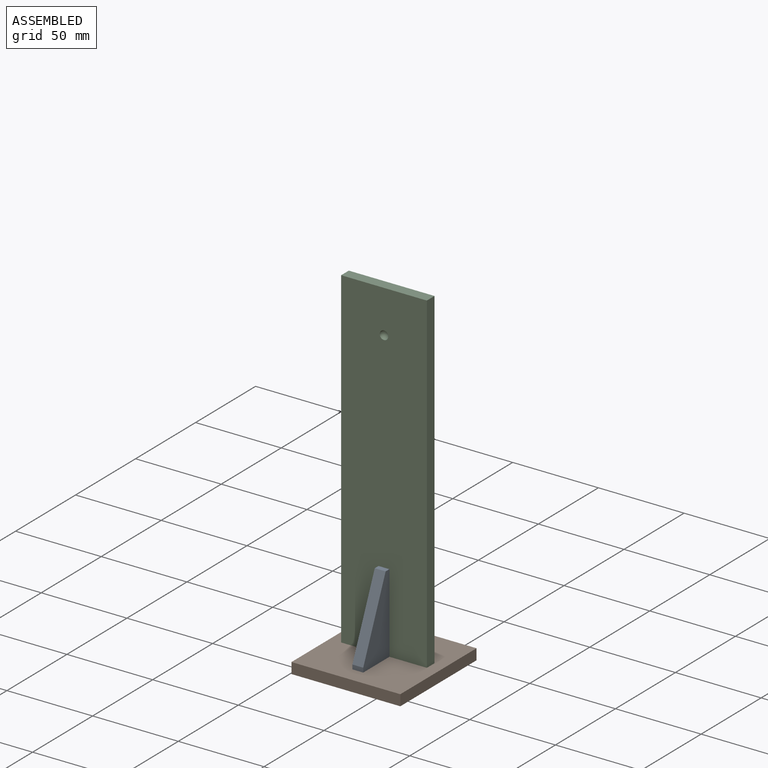
[diagram: assembled view]
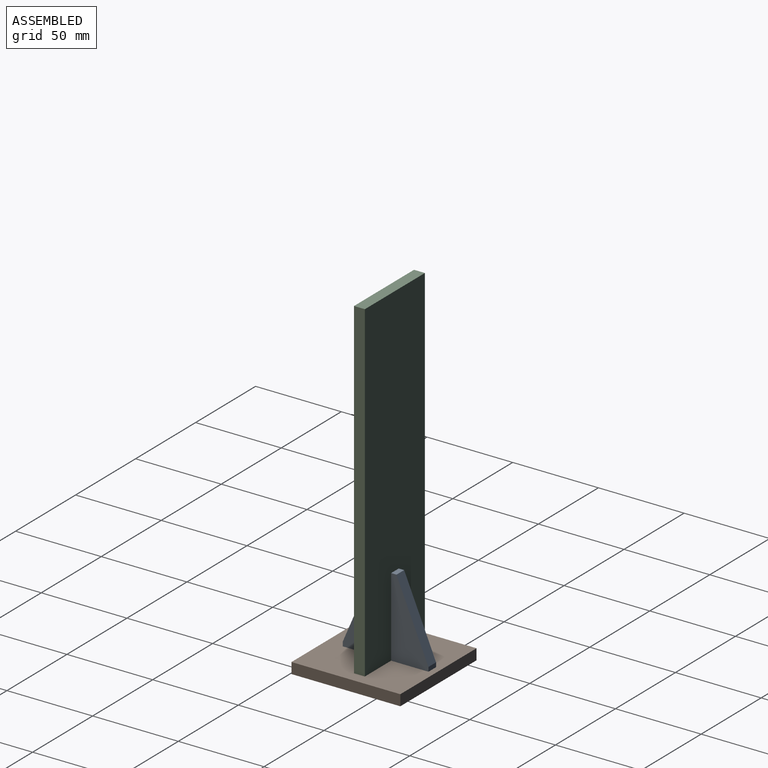
[diagram: assembled view, second angle]
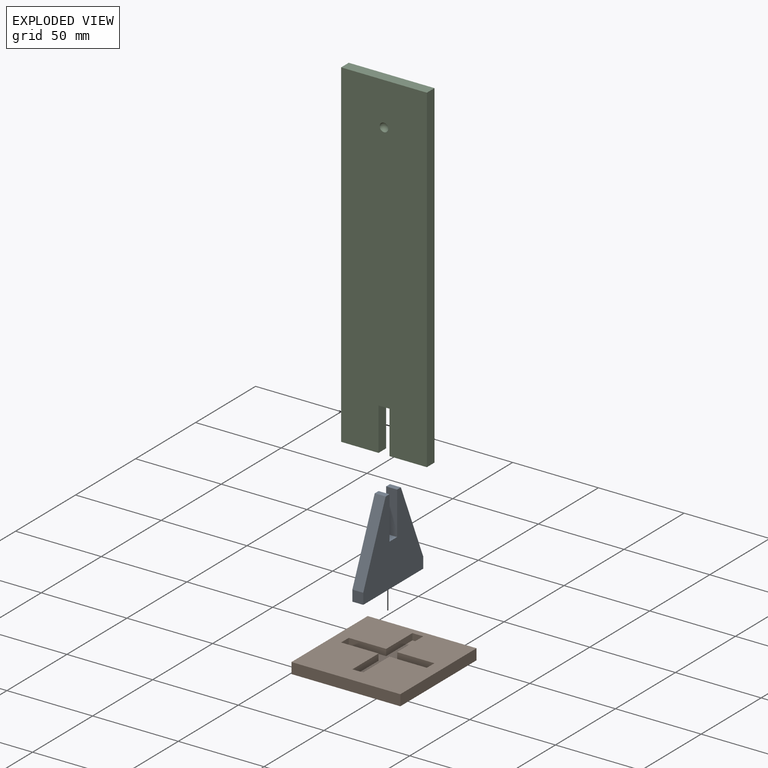
[diagram: exploded view]
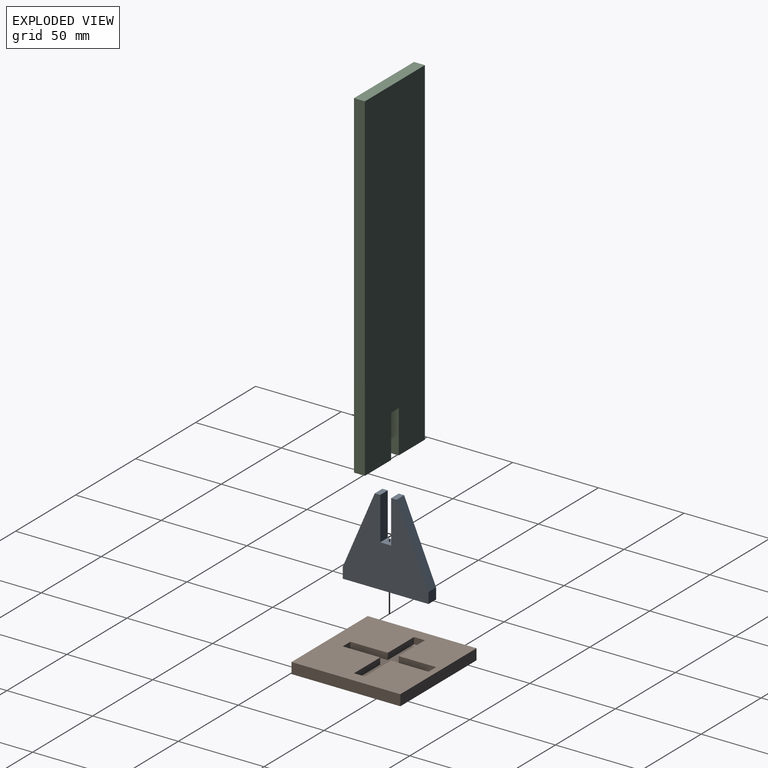
[diagram: exploded view, second angle]
ASSEMBLY  parts=3 mates=2
PART A: 12 faces, bbox 50x6.4x50 mm
  f0: plane 50x6.35mm, normal (0,0,-1), area 317.5mm2, adj f1,f9,f10,f11
  f1: plane 6.35x6.35mm, normal (1,0,0), area 40.3mm2, adj f0,f2,f10,f11
  f2: plane 43.65x18.65mm, normal (0.92,0,0.39), area 301.4mm2, adj f1,f3,f10,f11
  f3: plane 6.35x3.18mm, normal (0,0,1), area 20.2mm2, adj f2,f4,f10,f11
  f4: plane 25x6.35mm, normal (-1,0,0), area 158.8mm2, adj f3,f5,f10,f11
  f5: plane 6.35x6.35mm, normal (0,0,1), area 40.3mm2, adj f4,f6,f10,f11
  f6: plane 25x6.35mm, normal (1,0,0), area 158.8mm2, adj f5,f7,f10,f11
  f7: plane 6.35x3.18mm, normal (0,0,1), area 20.2mm2, adj f6,f8,f10,f11
  f8: plane 43.65x18.65mm, normal (-0.92,0,0.39), area 301.4mm2, adj f7,f9,f10,f11
  f9: plane 6.35x6.35mm, normal (-1,0,0), area 40.3mm2, adj f0,f8,f10,f11
  f10: plane 50x50mm, normal (0,-1,0), area 1527.2mm2, adj f0,f1,f2,f3,f4,f5,f6,f7
  f11: plane 50x50mm, normal (0,1,0), area 1527.2mm2, adj f0,f1,f2,f3,f4,f5,f6,f7
PART B: 19 faces, bbox 63.5x63.5x6.4 mm
  f0: plane 63.5x6.35mm, normal (-1,0,0), area 403.2mm2, adj f1,f3,f4,f5
  f1: plane 63.5x6.35mm, normal (0,-1,0), area 403.2mm2, adj f0,f2,f4,f5
  f2: plane 63.5x6.35mm, normal (1,0,0), area 403.2mm2, adj f1,f3,f4,f5
  f3: plane 63.5x6.35mm, normal (0,1,0), area 403.2mm2, adj f0,f2,f4,f5
  f4: plane 63.5x63.5mm, normal (0,0,1), area 3437.6mm2, adj f0,f1,f2,f3,f6,f7,f8,f9
  f5: plane 63.5x63.5mm, normal (0,0,-1), area 4032.2mm2, adj f0,f1,f2,f3
  f6: plane 21.83x3.81mm, normal (0,-1,0), area 83.2mm2, adj f4,f7,f17,f18
  f7: plane 21.83x3.81mm, normal (-1,0,0), area 83.2mm2, adj f4,f6,f8,f18
  f8: plane 6.35x3.81mm, normal (0,-1,0), area 24.2mm2, adj f4,f7,f9,f18
  f9: plane 21.83x3.81mm, normal (1,0,0), area 83.2mm2, adj f4,f8,f10,f18
  f10: plane 21.83x3.81mm, normal (0,-1,0), area 83.2mm2, adj f4,f9,f11,f18
  f11: plane 6.35x3.81mm, normal (1,0,0), area 24.2mm2, adj f4,f10,f12,f18
  f12: plane 21.83x3.81mm, normal (0,1,0), area 83.2mm2, adj f4,f11,f13,f18
  f13: plane 21.83x3.81mm, normal (1,0,0), area 83.2mm2, adj f4,f12,f14,f18
  f14: plane 6.35x3.81mm, normal (0,1,0), area 24.2mm2, adj f4,f13,f15,f18
  f15: plane 21.83x3.81mm, normal (-1,0,0), area 83.2mm2, adj f4,f14,f16,f18
  f16: plane 21.83x3.81mm, normal (0,1,0), area 83.2mm2, adj f4,f15,f17,f18
  f17: plane 6.35x3.81mm, normal (-1,0,0), area 24.2mm2, adj f4,f6,f16,f18
  f18: plane 50x50mm, normal (0,0,1), area 594.7mm2, adj f6,f7,f8,f9,f10,f11,f12,f13
PART C: 11 faces, bbox 50x6.4x197.5 mm
  f0: plane 21.83x6.35mm, normal (0,0,-1), area 138.6mm2, adj f1,f2,f5,f9
  f1: plane 197.46x50mm, normal (0,-1,0), area 9694.6mm2, adj f0,f3,f4,f5,f6,f7,f8,f9
  f2: plane 197.46x50mm, normal (0,1,0), area 9714.3mm2, adj f0,f3,f4,f5,f6,f8,f9,f10
  f3: plane 197.46x6.35mm, normal (-1,0,0), area 1253.9mm2, adj f1,f2,f4,f6
  f4: plane 21.83x6.35mm, normal (0,0,-1), area 138.6mm2, adj f1,f2,f3,f8
  f5: plane 197.46x6.35mm, normal (1,0,0), area 1253.9mm2, adj f0,f1,f2,f6
  f6: plane 50x6.35mm, normal (0,0,1), area 317.5mm2, adj f1,f2,f3,f5
  f7: sphere r=2.5mm, area 39.3mm2, adj f1
  f8: plane 25x6.35mm, normal (1,0,0), area 158.8mm2, adj f1,f2,f4,f10
  f9: plane 25x6.35mm, normal (-1,0,0), area 158.8mm2, adj f0,f1,f2,f10
  f10: plane 6.35x6.35mm, normal (0,0,-1), area 40.3mm2, adj f1,f2,f8,f9
PLACE A rot(axis=(0,0,1),90deg) t=(0,3.18,27.54)mm
PLACE B at identity fixed
PLACE C t=(0,3.18,101.27)mm
MATE fastened A.f0 <-> B.f18  axis (0,0,-1) through (0,3.18,2.54)mm
MATE fastened C.f10 <-> A.f5  axis (0,0,-1) through (0,3.18,27.54)mm
